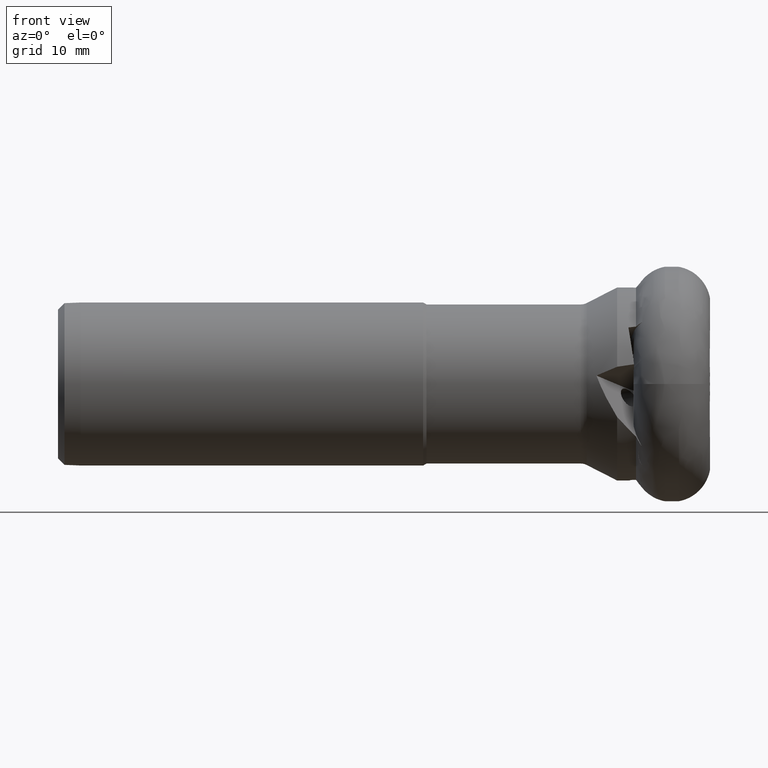
[diagram: clean part render]
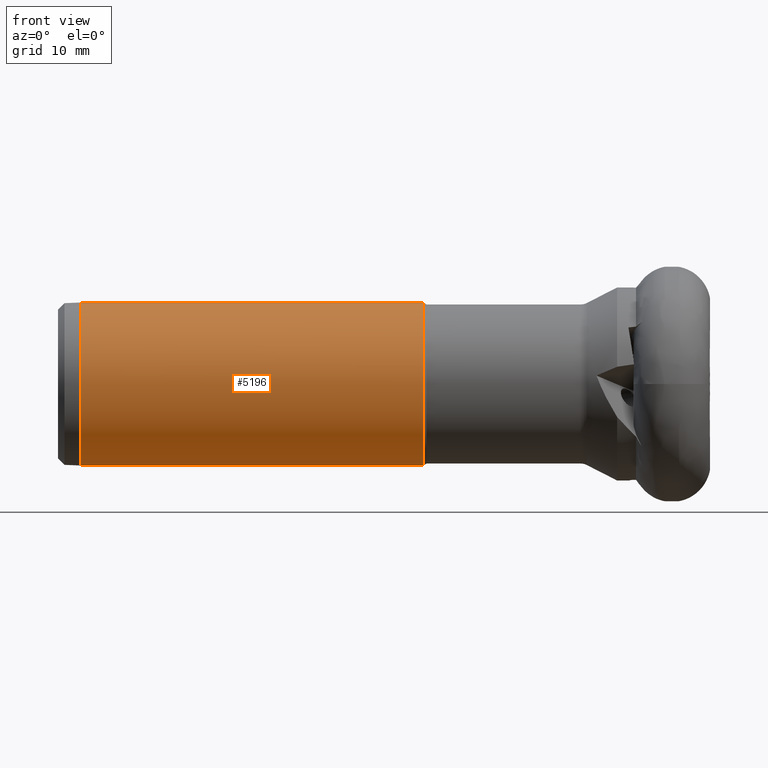
[diagram: same view with one face highlighted and labeled with its STEP entity id]
A machine part, front view. The second image highlights one B-rep face of the part: STEP entity #5196.
In plain terms, the highlighted cylindrical surface (partial cylindrical patch) has radius 12.5 mm, axis along (1, -0, -0).
Its self-contained STEP definition (entity closure, byte-faithful):
#163 = DIRECTION ( 'NONE',  ( 1.000000000000000000, -0.0000000000000000000, -0.0000000000000000000 ) ) ;
#587 = DIRECTION ( 'NONE',  ( 0.0000000000000000000, 0.0000000000000000000, -1.000000000000000000 ) ) ;
#667 = EDGE_LOOP ( 'NONE', ( #4354, #899, #5238, #4527 ) ) ;
#730 = CIRCLE ( 'NONE', #1939, 12.49999999999998900 ) ;
#738 = CARTESIAN_POINT ( 'NONE',  ( -95.25000000000000000, 1.530808498934190100E-015, 12.49999999999998900 ) ) ;
#780 = VERTEX_POINT ( 'NONE', #738 ) ;
#899 = ORIENTED_EDGE ( 'NONE', *, *, #3944, .T. ) ;
#1336 = CARTESIAN_POINT ( 'NONE',  ( -42.75000000000000000, 0.0000000000000000000, 0.0000000000000000000 ) ) ;
#1498 = CARTESIAN_POINT ( 'NONE',  ( 0.0000000000000000000, 1.530808498934190500E-015, 12.49999999999999300 ) ) ;
#1939 = AXIS2_PLACEMENT_3D ( 'NONE', #4828, #2880, #2450 ) ;
#2018 = LINE ( 'NONE', #3641, #3681 ) ;
#2358 = VERTEX_POINT ( 'NONE', #3385 ) ;
#2450 = DIRECTION ( 'NONE',  ( 0.0000000000000000000, 0.0000000000000000000, -1.000000000000000000 ) ) ;
#2588 = LINE ( 'NONE', #1498, #5025 ) ;
#2636 = CARTESIAN_POINT ( 'NONE',  ( -42.75000000000000000, 0.0000000000000000000, -12.49999999999999500 ) ) ;
#2665 = DIRECTION ( 'NONE',  ( 0.0000000000000000000, 0.0000000000000000000, -1.000000000000000000 ) ) ;
#2682 = DIRECTION ( 'NONE',  ( 1.000000000000000000, -0.0000000000000000000, -0.0000000000000000000 ) ) ;
#2880 = DIRECTION ( 'NONE',  ( 1.000000000000000000, -0.0000000000000000000, -0.0000000000000000000 ) ) ;
#3319 = CIRCLE ( 'NONE', #5911, 12.49999999999999500 ) ;
#3385 = CARTESIAN_POINT ( 'NONE',  ( -42.75000000000000000, 1.530808498934190900E-015, 12.49999999999999500 ) ) ;
#3466 = FACE_OUTER_BOUND ( 'NONE', #667, .T. ) ;
#3620 = DIRECTION ( 'NONE',  ( 1.000000000000000000, -0.0000000000000000000, -0.0000000000000000000 ) ) ;
#3641 = CARTESIAN_POINT ( 'NONE',  ( 0.0000000000000000000, 0.0000000000000000000, -12.49999999999999300 ) ) ;
#3681 = VECTOR ( 'NONE', #2682, 1000.000000000000000 ) ;
#3905 = CARTESIAN_POINT ( 'NONE',  ( -95.25000000000000000, 0.0000000000000000000, -12.49999999999998900 ) ) ;
#3913 = VERTEX_POINT ( 'NONE', #3905 ) ;
#3944 = EDGE_CURVE ( 'NONE', #780, #3913, #730, .T. ) ;
#3974 = CYLINDRICAL_SURFACE ( 'NONE', #5186, 12.49999999999999300 ) ;
#4228 = DIRECTION ( 'NONE',  ( 1.000000000000000000, -0.0000000000000000000, -0.0000000000000000000 ) ) ;
#4354 = ORIENTED_EDGE ( 'NONE', *, *, #4822, .F. ) ;
#4527 = ORIENTED_EDGE ( 'NONE', *, *, #5419, .F. ) ;
#4664 = CARTESIAN_POINT ( 'NONE',  ( 0.0000000000000000000, 0.0000000000000000000, 0.0000000000000000000 ) ) ;
#4822 = EDGE_CURVE ( 'NONE', #780, #2358, #2588, .T. ) ;
#4828 = CARTESIAN_POINT ( 'NONE',  ( -95.25000000000000000, 0.0000000000000000000, 0.0000000000000000000 ) ) ;
#5025 = VECTOR ( 'NONE', #163, 1000.000000000000000 ) ;
#5186 = AXIS2_PLACEMENT_3D ( 'NONE', #4664, #4228, #587 ) ;
#5196 = ADVANCED_FACE ( 'Fl�che9', ( #3466 ), #3974, .T. ) ;
#5238 = ORIENTED_EDGE ( 'NONE', *, *, #5406, .T. ) ;
#5406 = EDGE_CURVE ( 'NONE', #3913, #5771, #2018, .T. ) ;
#5419 = EDGE_CURVE ( 'NONE', #2358, #5771, #3319, .T. ) ;
#5771 = VERTEX_POINT ( 'NONE', #2636 ) ;
#5911 = AXIS2_PLACEMENT_3D ( 'NONE', #1336, #3620, #2665 ) ;